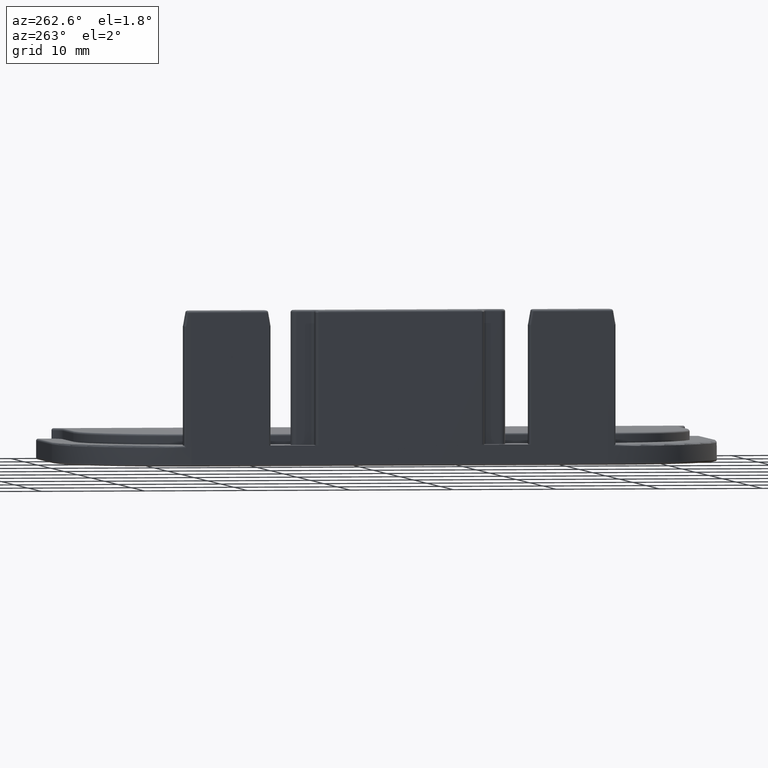
[diagram: clean part render]
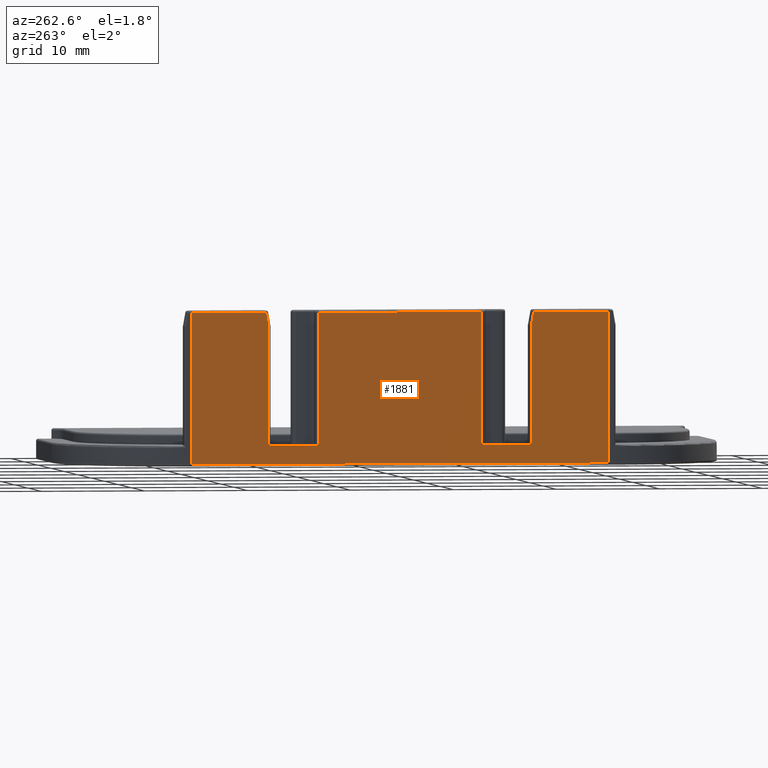
[diagram: same view with one face highlighted and labeled with its STEP entity id]
A machine part, auxiliary view. The second image highlights one B-rep face of the part: STEP entity #1881.
In plain terms, the highlighted planar face has unit normal (-1, 0, 0).
Its self-contained STEP definition (entity closure, byte-faithful):
#47=PLANE('',#2062);
#121=FACE_OUTER_BOUND('',#245,.T.);
#245=EDGE_LOOP('',(#1315,#1316,#1317,#1318,#1319,#1320,#1321,#1322,#1323,
#1324,#1325,#1326,#1327,#1328));
#347=LINE('',#2942,#490);
#372=LINE('',#3074,#515);
#373=LINE('',#3078,#516);
#374=LINE('',#3080,#517);
#375=LINE('',#3082,#518);
#376=LINE('',#3084,#519);
#377=LINE('',#3086,#520);
#378=LINE('',#3088,#521);
#379=LINE('',#3090,#522);
#380=LINE('',#3092,#523);
#381=LINE('',#3094,#524);
#382=LINE('',#3096,#525);
#383=LINE('',#3098,#526);
#384=LINE('',#3099,#527);
#490=VECTOR('',#2275,10.);
#515=VECTOR('',#2406,10.);
#516=VECTOR('',#2411,10.);
#517=VECTOR('',#2412,10.);
#518=VECTOR('',#2413,10.);
#519=VECTOR('',#2414,10.);
#520=VECTOR('',#2415,10.);
#521=VECTOR('',#2416,10.);
#522=VECTOR('',#2417,10.);
#523=VECTOR('',#2418,10.);
#524=VECTOR('',#2419,10.);
#525=VECTOR('',#2420,10.);
#526=VECTOR('',#2421,10.);
#527=VECTOR('',#2422,10.);
#765=VERTEX_POINT('',#2935);
#768=VERTEX_POINT('',#2940);
#804=VERTEX_POINT('',#3073);
#805=VERTEX_POINT('',#3077);
#806=VERTEX_POINT('',#3079);
#807=VERTEX_POINT('',#3081);
#808=VERTEX_POINT('',#3083);
#809=VERTEX_POINT('',#3085);
#810=VERTEX_POINT('',#3087);
#811=VERTEX_POINT('',#3089);
#812=VERTEX_POINT('',#3091);
#813=VERTEX_POINT('',#3093);
#814=VERTEX_POINT('',#3095);
#815=VERTEX_POINT('',#3097);
#936=EDGE_CURVE('',#768,#765,#347,.T.);
#994=EDGE_CURVE('',#804,#765,#372,.T.);
#996=EDGE_CURVE('',#805,#768,#373,.T.);
#997=EDGE_CURVE('',#805,#806,#374,.T.);
#998=EDGE_CURVE('',#807,#806,#375,.T.);
#999=EDGE_CURVE('',#808,#807,#376,.T.);
#1000=EDGE_CURVE('',#809,#808,#377,.T.);
#1001=EDGE_CURVE('',#810,#809,#378,.T.);
#1002=EDGE_CURVE('',#811,#810,#379,.T.);
#1003=EDGE_CURVE('',#811,#812,#380,.T.);
#1004=EDGE_CURVE('',#813,#812,#381,.T.);
#1005=EDGE_CURVE('',#814,#813,#382,.T.);
#1006=EDGE_CURVE('',#815,#814,#383,.T.);
#1007=EDGE_CURVE('',#815,#804,#384,.T.);
#1315=ORIENTED_EDGE('',*,*,#936,.F.);
#1316=ORIENTED_EDGE('',*,*,#996,.F.);
#1317=ORIENTED_EDGE('',*,*,#997,.T.);
#1318=ORIENTED_EDGE('',*,*,#998,.F.);
#1319=ORIENTED_EDGE('',*,*,#999,.F.);
#1320=ORIENTED_EDGE('',*,*,#1000,.F.);
#1321=ORIENTED_EDGE('',*,*,#1001,.F.);
#1322=ORIENTED_EDGE('',*,*,#1002,.F.);
#1323=ORIENTED_EDGE('',*,*,#1003,.T.);
#1324=ORIENTED_EDGE('',*,*,#1004,.F.);
#1325=ORIENTED_EDGE('',*,*,#1005,.F.);
#1326=ORIENTED_EDGE('',*,*,#1006,.F.);
#1327=ORIENTED_EDGE('',*,*,#1007,.T.);
#1328=ORIENTED_EDGE('',*,*,#994,.T.);
#1881=ADVANCED_FACE('',(#121),#47,.T.);
#2062=AXIS2_PLACEMENT_3D('',#3076,#2409,#2410);
#2275=DIRECTION('',(0.,-1.,-1.03164280803872E-31));
#2406=DIRECTION('',(0.,0.,1.));
#2409=DIRECTION('center_axis',(-1.,0.,0.));
#2410=DIRECTION('ref_axis',(0.,0.,1.));
#2411=DIRECTION('',(0.,0.,1.));
#2412=DIRECTION('',(0.,1.,0.));
#2413=DIRECTION('',(0.,0.,-1.));
#2414=DIRECTION('',(0.,-0.17364817766693,-0.984807753012208));
#2415=DIRECTION('',(0.,-1.,-1.82044381611359E-31));
#2416=DIRECTION('',(0.,0.,1.));
#2417=DIRECTION('',(0.,1.,0.));
#2418=DIRECTION('',(0.,0.,1.));
#2419=DIRECTION('',(0.,-1.,1.03241533586133E-30));
#2420=DIRECTION('',(0.,-0.173648177666929,0.984807753012208));
#2421=DIRECTION('',(0.,0.,1.));
#2422=DIRECTION('',(0.,1.,0.));
#2935=CARTESIAN_POINT('',(5.55111512312578E-16,-7.9,14.8));
#2940=CARTESIAN_POINT('',(5.55111512312578E-16,7.9,14.8));
#2942=CARTESIAN_POINT('',(5.55111512312578E-16,-10.125,14.8));
#3073=CARTESIAN_POINT('',(5.55111512312578E-16,-7.9,2.));
#3074=CARTESIAN_POINT('',(5.55111512312578E-16,-7.9,2.));
#3076=CARTESIAN_POINT('Origin',(5.55111512312578E-16,-20.25,0.));
#3077=CARTESIAN_POINT('',(5.55111512312578E-16,7.9,2.));
#3078=CARTESIAN_POINT('',(5.55111512312578E-16,7.9,2.));
#3079=CARTESIAN_POINT('',(5.55111512312578E-16,12.75,2.));
#3080=CARTESIAN_POINT('',(5.55111512312578E-16,20.25,2.));
#3081=CARTESIAN_POINT('',(5.55111512312578E-16,12.75,13.4825022672948));
#3082=CARTESIAN_POINT('',(5.55111512312578E-16,12.75,1.));
#3083=CARTESIAN_POINT('',(5.55111512312578E-16,12.9823103972982,14.8));
#3084=CARTESIAN_POINT('',(5.55111512312578E-16,11.1642456750884,4.48924259404369));
#3085=CARTESIAN_POINT('',(5.55111512312578E-16,20.25,14.8));
#3086=CARTESIAN_POINT('',(5.55111512312578E-16,-1.75212010766235,14.8));
#3087=CARTESIAN_POINT('',(5.55111512312578E-16,20.25,0.2));
#3088=CARTESIAN_POINT('',(5.55111512312578E-16,20.25,0.));
#3089=CARTESIAN_POINT('',(5.55111512312578E-16,-20.25,0.2));
#3090=CARTESIAN_POINT('',(5.55111512312578E-16,-10.125,0.2));
#3091=CARTESIAN_POINT('',(5.55111512312578E-16,-20.25,14.8));
#3092=CARTESIAN_POINT('',(5.55111512312578E-16,-20.25,0.));
#3093=CARTESIAN_POINT('',(5.55111512312578E-16,-12.9823103972982,14.8));
#3094=CARTESIAN_POINT('',(5.55111512312578E-16,-18.4978798923376,14.8));
#3095=CARTESIAN_POINT('',(5.55111512312578E-16,-12.75,13.4825022672948));
#3096=CARTESIAN_POINT('',(5.55111512312578E-16,-11.7748578896311,7.95219654521608));
#3097=CARTESIAN_POINT('',(5.55111512312578E-16,-12.75,2.));
#3098=CARTESIAN_POINT('',(5.55111512312578E-16,-12.75,1.));
#3099=CARTESIAN_POINT('',(5.55111512312578E-16,20.25,2.));